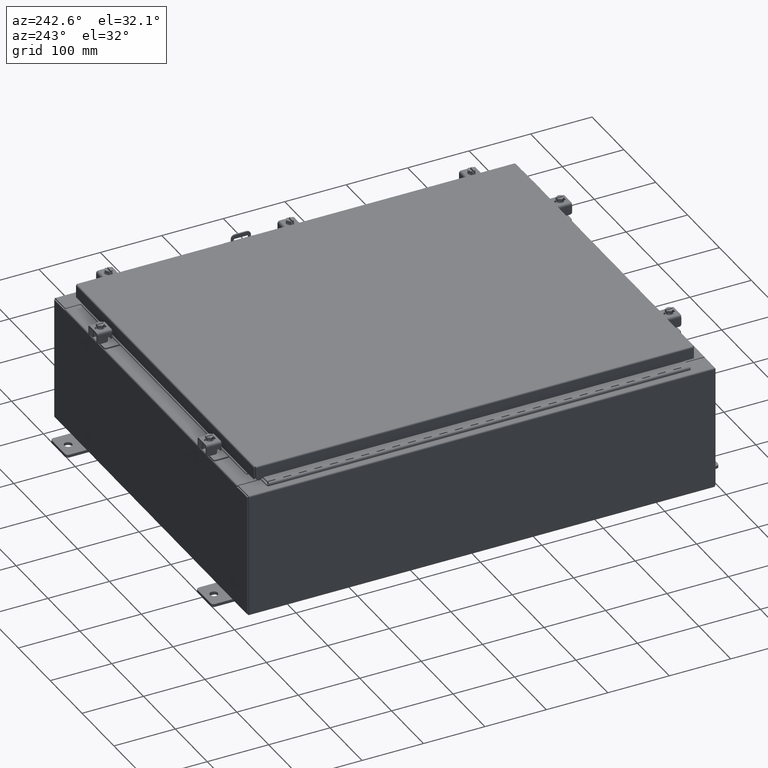
[diagram: clean part render]
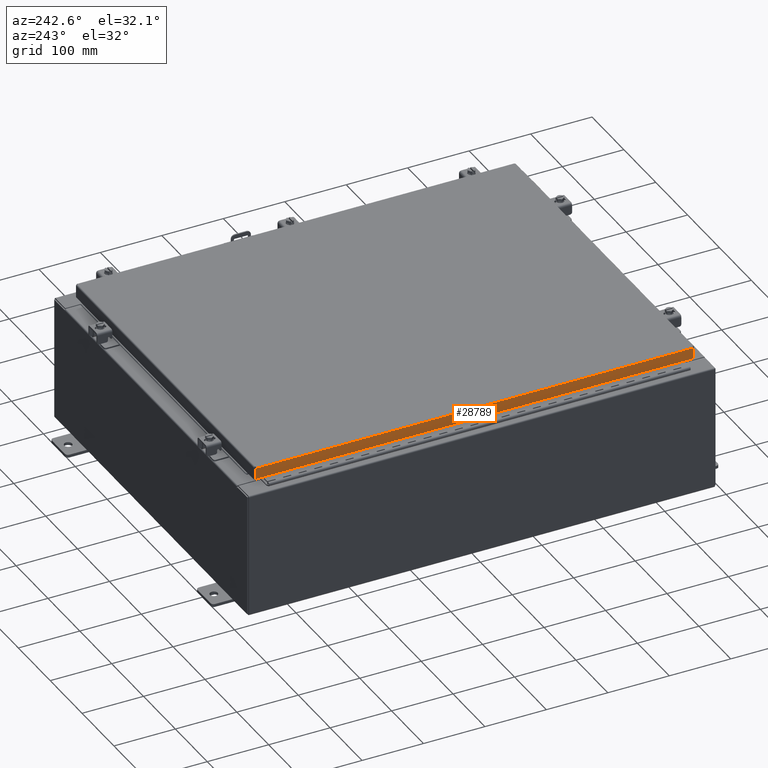
[diagram: same view with one face highlighted and labeled with its STEP entity id]
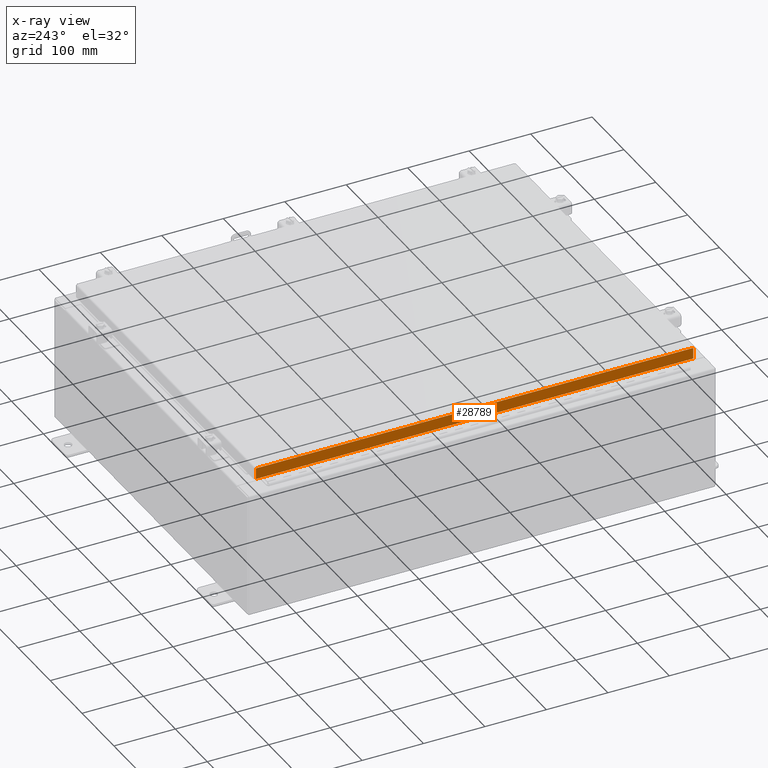
[diagram: x-ray of the same camera — body ghosted, the highlighted face saturated]
A machine part, auxiliary view. The second image highlights one B-rep face of the part: STEP entity #28789.
The next image is the same camera in x-ray: the body ghosted, the highlighted face saturated — about 0% of this face is hidden behind the body in this view.
In plain terms, the highlighted planar face has unit normal (1, 0, -0).
Its self-contained STEP definition (entity closure, byte-faithful):
#144 = ORIENTED_EDGE ( 'NONE', *, *, #9547, .F. ) ;
#1221 = LINE ( 'NONE', #14271, #23304 ) ;
#2476 = CARTESIAN_POINT ( 'NONE',  ( -11.07799999999999900, -14.00515786437626400, -0.08770000000000007000 ) ) ;
#3346 = FACE_OUTER_BOUND ( 'NONE', #5945, .T. ) ;
#3841 = VECTOR ( 'NONE', #4996, 39.37007874015748100 ) ;
#4323 = DIRECTION ( 'NONE',  ( 3.675660434206577100E-031, -1.000000000000000000, -1.083515668565077200E-045 ) ) ;
#4996 = DIRECTION ( 'NONE',  ( -3.034122441942816500E-015, 6.982962677686265900E-015, -1.000000000000000000 ) ) ;
#5945 = EDGE_LOOP ( 'NONE', ( #34120, #36845, #35984, #144 ) ) ;
#7861 = CARTESIAN_POINT ( 'NONE',  ( -11.07800000000000300, -14.09399999999999600, -0.7949999999999997100 ) ) ;
#9514 = VERTEX_POINT ( 'NONE', #13936 ) ;
#9547 = EDGE_CURVE ( 'NONE', #22346, #31480, #1221, .T. ) ;
#9975 = EDGE_CURVE ( 'NONE', #35788, #9514, #31984, .T. ) ;
#10147 = VECTOR ( 'NONE', #4323, 39.37007874015748100 ) ;
#11901 = EDGE_CURVE ( 'NONE', #31480, #9514, #20915, .T. ) ;
#12072 = DIRECTION ( 'NONE',  ( -3.034122441942816500E-015, 0.0000000000000000000, -1.000000000000000000 ) ) ;
#12193 = CARTESIAN_POINT ( 'NONE',  ( -11.07799999999999900, -4.071896629014046000E-030, 3.387282206785410600E-014 ) ) ;
#12949 = CARTESIAN_POINT ( 'NONE',  ( -11.07799999999999900, 14.00515786437626900, -0.08770000000000004200 ) ) ;
#13936 = CARTESIAN_POINT ( 'NONE',  ( -11.07800000000000300, 14.00515786437627400, -0.7949999999999962700 ) ) ;
#14271 = CARTESIAN_POINT ( 'NONE',  ( -11.07799999999999900, -14.00515786437626500, -0.07469999999999976700 ) ) ;
#15769 = CARTESIAN_POINT ( 'NONE',  ( -11.07800000000000300, -14.00515786437626200, -0.7949999999999996000 ) ) ;
#17501 = CARTESIAN_POINT ( 'NONE',  ( -11.07799999999999900, 14.00515786437626900, 1.316703167298978800E-013 ) ) ;
#19005 = DIRECTION ( 'NONE',  ( -3.034122441942816500E-015, 6.982962677686265900E-015, -1.000000000000000000 ) ) ;
#20915 = LINE ( 'NONE', #7861, #34612 ) ;
#21015 = DIRECTION ( 'NONE',  ( -4.379057701015054300E-047, 1.000000000000000000, 1.211441035930299800E-016 ) ) ;
#22346 = VERTEX_POINT ( 'NONE', #2476 ) ;
#23304 = VECTOR ( 'NONE', #19005, 39.37007874015748100 ) ;
#24492 = EDGE_CURVE ( 'NONE', #35788, #22346, #34250, .T. ) ;
#28789 = ADVANCED_FACE ( 'NONE', ( #3346 ), #35383, .F. ) ;
#31480 = VERTEX_POINT ( 'NONE', #15769 ) ;
#31984 = LINE ( 'NONE', #17501, #3841 ) ;
#32456 = DIRECTION ( 'NONE',  ( 1.000000000000000000, 3.675660434206576600E-031, -3.034122441942816500E-015 ) ) ;
#32704 = AXIS2_PLACEMENT_3D ( 'NONE', #12193, #32456, #12072 ) ;
#33741 = CARTESIAN_POINT ( 'NONE',  ( -11.07799999999999900, -14.09399999999999600, -0.08770000000000004200 ) ) ;
#34120 = ORIENTED_EDGE ( 'NONE', *, *, #24492, .F. ) ;
#34250 = LINE ( 'NONE', #33741, #10147 ) ;
#34612 = VECTOR ( 'NONE', #21015, 39.37007874015748100 ) ;
#35383 = PLANE ( 'NONE',  #32704 ) ;
#35788 = VERTEX_POINT ( 'NONE', #12949 ) ;
#35984 = ORIENTED_EDGE ( 'NONE', *, *, #11901, .F. ) ;
#36845 = ORIENTED_EDGE ( 'NONE', *, *, #9975, .T. ) ;